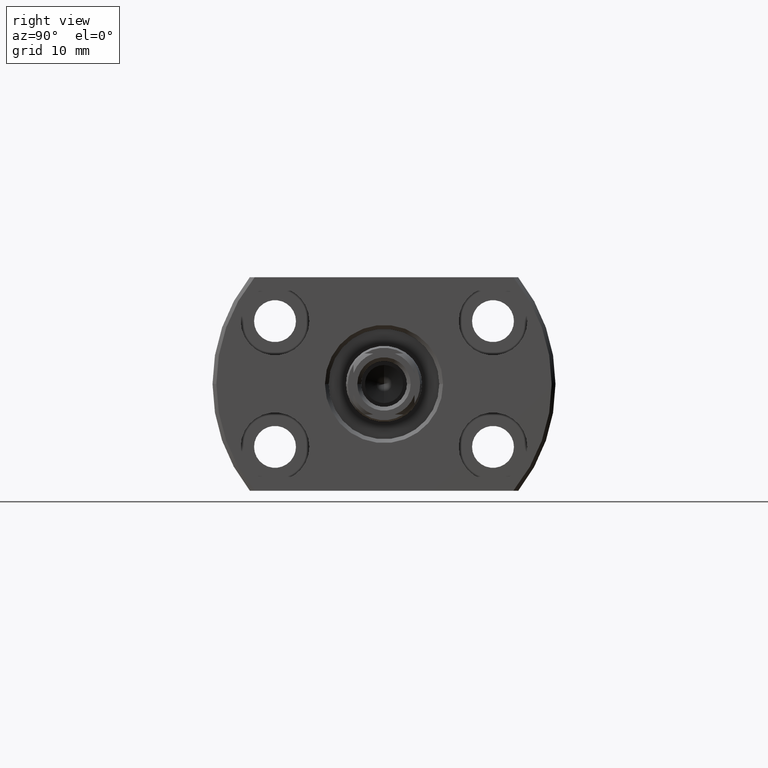
[diagram: clean part render]
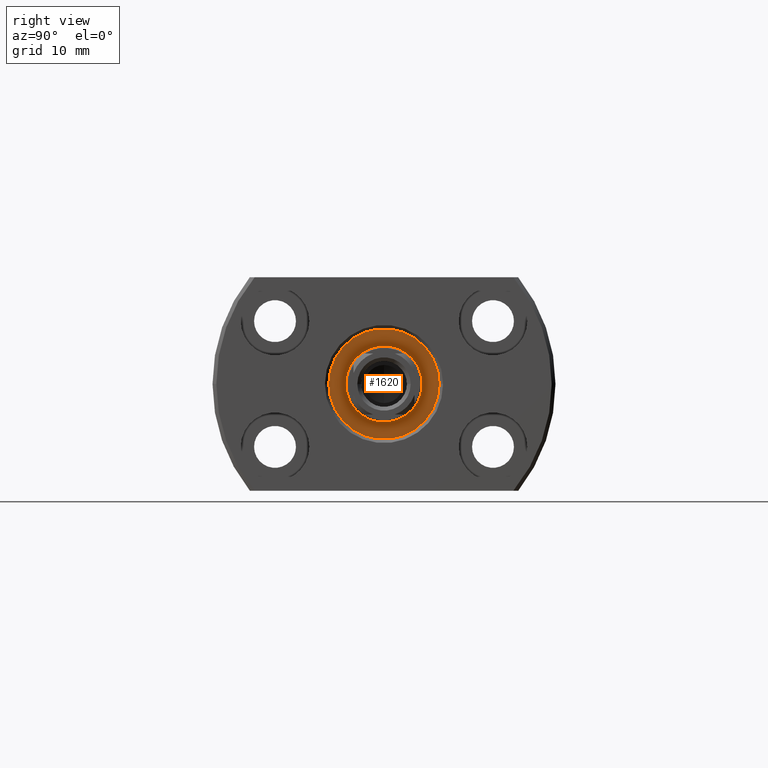
[diagram: same view with one face highlighted and labeled with its STEP entity id]
A machine part, right view. The second image highlights one B-rep face of the part: STEP entity #1620.
In plain terms, the highlighted planar face has unit normal (1, -0, 0).
Its self-contained STEP definition (entity closure, byte-faithful):
#213 = CIRCLE ( 'NONE', #2813, 5.000000000000000000 ) ;
#279 = PLANE ( 'NONE',  #763 ) ;
#345 = DIRECTION ( 'NONE',  ( 1.000000000000000000, -2.886466111666351885E-14, 0.000000000000000000 ) ) ;
#366 = DIRECTION ( 'NONE',  ( 2.871266442996094806E-14, 1.000000000000000000, 0.000000000000000000 ) ) ;
#561 = CARTESIAN_POINT ( 'NONE',  ( 22.50000000000020606, 7.249999999999350742, 0.000000000000000000 ) ) ;
#581 = FACE_OUTER_BOUND ( 'NONE', #1632, .T. ) ;
#603 = CIRCLE ( 'NONE', #1910, 5.000000000000000000 ) ;
#727 = ORIENTED_EDGE ( 'NONE', *, *, #1520, .F. ) ;
#732 = DIRECTION ( 'NONE',  ( 1.000000000000000000, -2.886466111666351885E-14, 0.000000000000000000 ) ) ;
#763 = AXIS2_PLACEMENT_3D ( 'NONE', #1061, #345, #1287 ) ;
#780 = CARTESIAN_POINT ( 'NONE',  ( 22.49999999999985434, -5.000000000000650147, 6.123233995737145922E-16 ) ) ;
#852 = CARTESIAN_POINT ( 'NONE',  ( 22.50000000000000000, -6.494548751249292246E-13, 0.000000000000000000 ) ) ;
#860 = AXIS2_PLACEMENT_3D ( 'NONE', #852, #2603, #366 ) ;
#912 = CIRCLE ( 'NONE', #860, 7.250000000000000000 ) ;
#1061 = CARTESIAN_POINT ( 'NONE',  ( 22.50000000000000000, -6.494548751249292246E-13, 0.000000000000000000 ) ) ;
#1069 = ORIENTED_EDGE ( 'NONE', *, *, #2547, .T. ) ;
#1287 = DIRECTION ( 'NONE',  ( 2.886466111666351885E-14, 1.000000000000000000, 0.000000000000000000 ) ) ;
#1339 = AXIS2_PLACEMENT_3D ( 'NONE', #1483, #732, #2717 ) ;
#1483 = CARTESIAN_POINT ( 'NONE',  ( 22.50000000000000000, -6.494548751249292246E-13, 0.000000000000000000 ) ) ;
#1520 = EDGE_CURVE ( 'NONE', #2900, #2323, #213, .T. ) ;
#1620 = ADVANCED_FACE ( 'NONE', ( #2534, #581 ), #279, .T. ) ;
#1632 = EDGE_LOOP ( 'NONE', ( #2789, #1069 ) ) ;
#1736 = DIRECTION ( 'NONE',  ( 2.914335439641035919E-14, 1.000000000000000000, 0.000000000000000000 ) ) ;
#1910 = AXIS2_PLACEMENT_3D ( 'NONE', #2829, #2555, #2801 ) ;
#2026 = CARTESIAN_POINT ( 'NONE',  ( 22.50000000000000000, -6.494548751249292246E-13, 0.000000000000000000 ) ) ;
#2067 = CIRCLE ( 'NONE', #1339, 7.250000000000000000 ) ;
#2075 = VERTEX_POINT ( 'NONE', #561 ) ;
#2103 = ORIENTED_EDGE ( 'NONE', *, *, #2472, .F. ) ;
#2323 = VERTEX_POINT ( 'NONE', #3188 ) ;
#2403 = VERTEX_POINT ( 'NONE', #2660 ) ;
#2472 = EDGE_CURVE ( 'NONE', #2323, #2900, #603, .T. ) ;
#2534 = FACE_BOUND ( 'NONE', #3170, .T. ) ;
#2547 = EDGE_CURVE ( 'NONE', #2403, #2075, #912, .T. ) ;
#2555 = DIRECTION ( 'NONE',  ( 1.000000000000000000, -2.886466111666351885E-14, 0.000000000000000000 ) ) ;
#2603 = DIRECTION ( 'NONE',  ( 1.000000000000000000, -2.886466111666351885E-14, 0.000000000000000000 ) ) ;
#2660 = CARTESIAN_POINT ( 'NONE',  ( 22.49999999999979039, -7.250000000000650147, 8.878689293818310074E-16 ) ) ;
#2717 = DIRECTION ( 'NONE',  ( 2.871266442996094806E-14, 1.000000000000000000, 0.000000000000000000 ) ) ;
#2789 = ORIENTED_EDGE ( 'NONE', *, *, #2861, .T. ) ;
#2801 = DIRECTION ( 'NONE',  ( 2.914335439641035919E-14, 1.000000000000000000, 0.000000000000000000 ) ) ;
#2813 = AXIS2_PLACEMENT_3D ( 'NONE', #2026, #3014, #1736 ) ;
#2829 = CARTESIAN_POINT ( 'NONE',  ( 22.50000000000000000, -6.494548751249292246E-13, 0.000000000000000000 ) ) ;
#2861 = EDGE_CURVE ( 'NONE', #2075, #2403, #2067, .T. ) ;
#2900 = VERTEX_POINT ( 'NONE', #780 ) ;
#3014 = DIRECTION ( 'NONE',  ( 1.000000000000000000, -2.886466111666351885E-14, 0.000000000000000000 ) ) ;
#3170 = EDGE_LOOP ( 'NONE', ( #2103, #727 ) ) ;
#3188 = CARTESIAN_POINT ( 'NONE',  ( 22.50000000000014566, 4.999999999999350742, 0.000000000000000000 ) ) ;